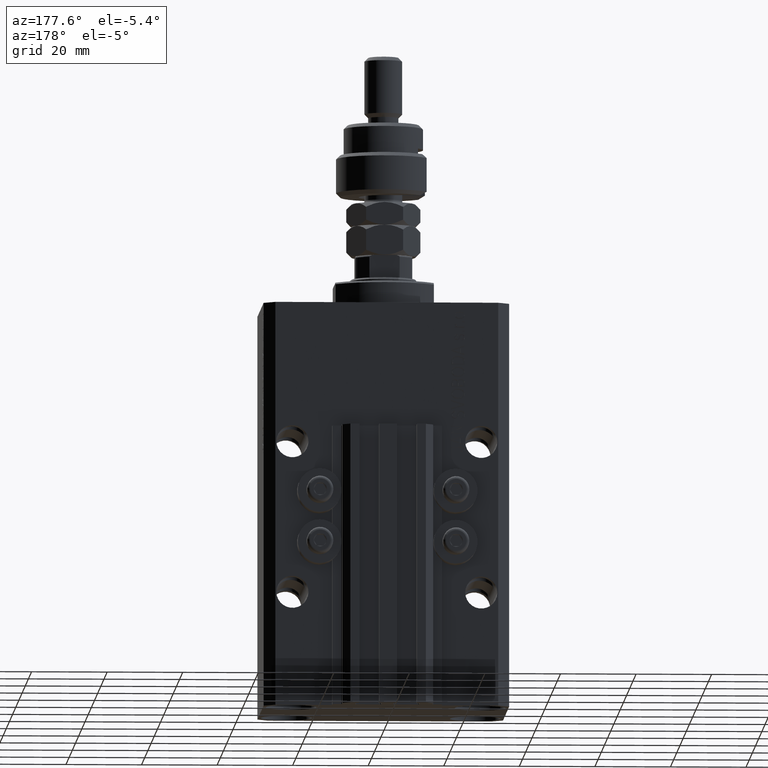
[diagram: clean part render]
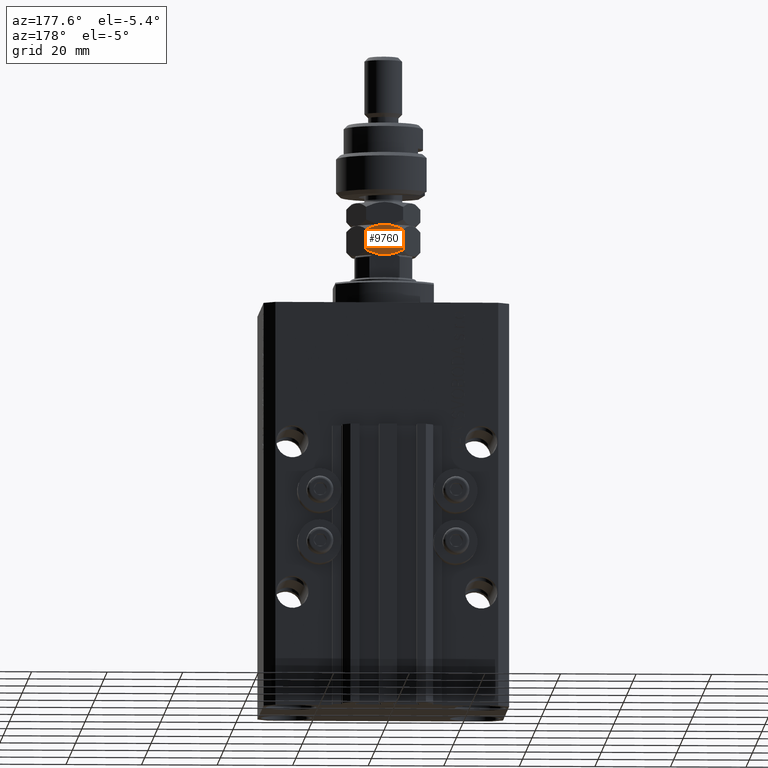
[diagram: same view with one face highlighted and labeled with its STEP entity id]
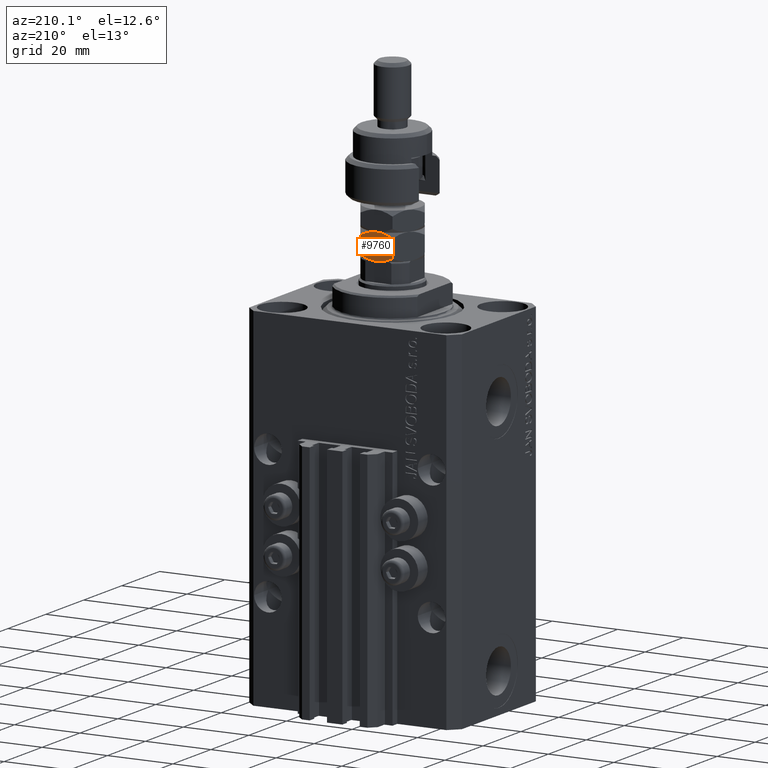
[diagram: same view with one face highlighted and labeled with its STEP entity id]
A machine part, auxiliary view. The second image highlights one B-rep face of the part: STEP entity #9760.
A second angle (auxiliary view) of the same face is appended — the face is thin or edge-on in the first view.
In plain terms, the highlighted planar face has unit normal (0, -1, 0).
Its self-contained STEP definition (entity closure, byte-faithful):
#56 = ORIENTED_EDGE ( 'NONE', *, *, #23952, .F. ) ;
#1036 = LINE ( 'NONE', #20211, #21606 ) ;
#1575 = B_SPLINE_CURVE_WITH_KNOTS ( 'NONE', 3,
 ( #20521, #15433, #27938, #4173, #43758, #47092, #43512, #27677 ),
 .UNSPECIFIED., .F., .F.,
 ( 4, 2, 2, 4 ),
 ( 2.544313836674336100E-07, 0.002543776790731957973, 0.003815537970406101317, 0.005087299150080244227 ),
 .UNSPECIFIED. ) ;
#2312 = EDGE_CURVE ( 'NONE', #43343, #26003, #29535, .T. ) ;
#4173 = CARTESIAN_POINT ( 'NONE',  ( -6.092930036521920556, 6.297199779484152771, 0.2536240893246534123 ) ) ;
#5151 = AXIS2_PLACEMENT_3D ( 'NONE', #41103, #29614, #37027 ) ;
#5621 = DIRECTION ( 'NONE',  ( -0.000000000000000000, -0.000000000000000000, -1.000000000000000000 ) ) ;
#6877 = CARTESIAN_POINT ( 'NONE',  ( -1.350892646810552433, 9.035016342941277756, 0.6009384127361191430 ) ) ;
#7018 = B_SPLINE_CURVE_WITH_KNOTS ( 'NONE', 3,
 ( #46038, #10289, #34019, #45775, #34523, #33767 ),
 .UNSPECIFIED., .F., .F.,
 ( 4, 2, 4 ),
 ( 0.005087299150080232084, 0.007613005268011854842, 0.01013871138594347847 ),
 .UNSPECIFIED. ) ;
#7131 = CARTESIAN_POINT ( 'NONE',  ( -3.510754653168324246, 7.788019432158175270, -2.226002585384300502E-15 ) ) ;
#7683 = ORIENTED_EDGE ( 'NONE', *, *, #16458, .F. ) ;
#9760 = ADVANCED_FACE ( 'NONE', ( #40359 ), #44689, .F. ) ;
#10289 = CARTESIAN_POINT ( 'NONE',  ( -4.989245346831672201, 6.934412432177284202, 8.000000000000005329 ) ) ;
#10462 = CARTESIAN_POINT ( 'NONE',  ( -2.784079206026081721, 8.207565697179243003, 0.1305202873832130295 ) ) ;
#10549 = EDGE_CURVE ( 'NONE', #44019, #26003, #24655, .T. ) ;
#10738 = CARTESIAN_POINT ( 'NONE',  ( -4.249999999999994671, 7.361215932167727516, 8.000000000000000000 ) ) ;
#11495 = VECTOR ( 'NONE', #30286, 1000.000000000000000 ) ;
#15397 = EDGE_CURVE ( 'NONE', #38292, #44019, #1575, .T. ) ;
#15433 = CARTESIAN_POINT ( 'NONE',  ( -7.833539178395718672, 5.292258622869395523, 0.9301732414660626169 ) ) ;
#16307 = CARTESIAN_POINT ( 'NONE',  ( 1.960053746949402388E-16, 9.814954576223636096, 1.314954576223628546 ) ) ;
#16458 = EDGE_CURVE ( 'NONE', #48257, #39760, #7018, .T. ) ;
#16468 = EDGE_LOOP ( 'NONE', ( #29914, #56, #7683, #35558, #28361, #49551 ) ) ;
#17369 = EDGE_CURVE ( 'NONE', #43343, #48257, #46552, .T. ) ;
#18545 = CARTESIAN_POINT ( 'NONE',  ( 0.000000000000000000, 9.814954576223636096, 8.000000000000000000 ) ) ;
#18626 = CARTESIAN_POINT ( 'NONE',  ( -8.500000000000001776, 4.907477288111821601, 6.685045423776368345 ) ) ;
#20211 = CARTESIAN_POINT ( 'NONE',  ( -8.500000000000001776, 4.907477288111821601, 8.000000000000000000 ) ) ;
#20521 = CARTESIAN_POINT ( 'NONE',  ( -8.500000000000001776, 4.907477288111821601, 1.314954576223634097 ) ) ;
#21606 = VECTOR ( 'NONE', #5621, 1000.000000000000000 ) ;
#22746 = CARTESIAN_POINT ( 'NONE',  ( -1.348005192929855323, 9.036683415216572257, 7.396790787579877069 ) ) ;
#22973 = CARTESIAN_POINT ( 'NONE',  ( -4.249999999999996447, 7.361215932167731957, 0.000000000000000000 ) ) ;
#23952 = EDGE_CURVE ( 'NONE', #39760, #38292, #1036, .T. ) ;
#24610 = CARTESIAN_POINT ( 'NONE',  ( -4.249999999999994671, 7.361215932167727516, 8.000000000000000000 ) ) ;
#24655 = B_SPLINE_CURVE_WITH_KNOTS ( 'NONE', 3,
 ( #38282, #7131, #10462, #6877, #26033, #50522 ),
 .UNSPECIFIED., .F., .F.,
 ( 4, 2, 4 ),
 ( 0.005087299150080244227, 0.007613005268011861781, 0.01013871138594347847 ),
 .UNSPECIFIED. ) ;
#26003 = VERTEX_POINT ( 'NONE', #16307 ) ;
#26033 = CARTESIAN_POINT ( 'NONE',  ( -0.6656893889372521578, 9.430618628324037189, 0.9306186283239277213 ) ) ;
#27677 = CARTESIAN_POINT ( 'NONE',  ( -4.249999999999996447, 7.361215932167731957, 0.000000000000000000 ) ) ;
#27938 = CARTESIAN_POINT ( 'NONE',  ( -7.151994807070144233, 5.685748449118888104, 0.6032092124201268168 ) ) ;
#28361 = ORIENTED_EDGE ( 'NONE', *, *, #2312, .T. ) ;
#29535 = LINE ( 'NONE', #18545, #11495 ) ;
#29614 = DIRECTION ( 'NONE',  ( 0.4999999999999995559, -0.8660254037844389297, 0.000000000000000000 ) ) ;
#29914 = ORIENTED_EDGE ( 'NONE', *, *, #15397, .F. ) ;
#30142 = CARTESIAN_POINT ( 'NONE',  ( -3.877770021349439045, 7.576123010542077374, 8.000000000000001776 ) ) ;
#30286 = DIRECTION ( 'NONE',  ( -0.000000000000000000, -0.000000000000000000, -1.000000000000000000 ) ) ;
#33767 = CARTESIAN_POINT ( 'NONE',  ( -8.500000000000001776, 4.907477288111821601, 6.685045423776368345 ) ) ;
#34019 = CARTESIAN_POINT ( 'NONE',  ( -5.715920793973915615, 6.514866167156221799, 7.869479712616790579 ) ) ;
#34523 = CARTESIAN_POINT ( 'NONE',  ( -7.834310611062749174, 5.291813236011422283, 7.069381371676069392 ) ) ;
#34726 = CARTESIAN_POINT ( 'NONE',  ( -2.175848833159079736E-16, 9.814954576223636096, 6.685045423776372786 ) ) ;
#35558 = ORIENTED_EDGE ( 'NONE', *, *, #17369, .F. ) ;
#37027 = DIRECTION ( 'NONE',  ( 0.8660254037844389297, 0.4999999999999995559, 0.000000000000000000 ) ) ;
#38282 = CARTESIAN_POINT ( 'NONE',  ( -4.249999999999996447, 7.361215932167731957, 0.000000000000000000 ) ) ;
#38292 = VERTEX_POINT ( 'NONE', #40662 ) ;
#38569 = CARTESIAN_POINT ( 'NONE',  ( -2.766281260884825510, 8.217841345597568292, 7.839178292058173625 ) ) ;
#39760 = VERTEX_POINT ( 'NONE', #18626 ) ;
#40359 = FACE_OUTER_BOUND ( 'NONE', #16468, .T. ) ;
#40662 = CARTESIAN_POINT ( 'NONE',  ( -8.500000000000001776, 4.907477288111821601, 1.314954576223634097 ) ) ;
#41103 = CARTESIAN_POINT ( 'NONE',  ( 0.000000000000000000, 9.814954576223636096, 8.000000000000000000 ) ) ;
#42393 = CARTESIAN_POINT ( 'NONE',  ( -3.499970675361005590, 7.794245564648163871, 7.966263250401637741 ) ) ;
#43343 = VERTEX_POINT ( 'NONE', #46140 ) ;
#43512 = CARTESIAN_POINT ( 'NONE',  ( -4.622229978650556070, 7.146308853793382987, -2.126899730555548151E-15 ) ) ;
#43758 = CARTESIAN_POINT ( 'NONE',  ( -5.733718739115173157, 6.504590518737894733, 0.1608217079418319817 ) ) ;
#44019 = VERTEX_POINT ( 'NONE', #22973 ) ;
#44689 = PLANE ( 'NONE',  #5151 ) ;
#45775 = CARTESIAN_POINT ( 'NONE',  ( -7.149107353189443792, 5.687415521394179940, 7.399061587263880746 ) ) ;
#45987 = CARTESIAN_POINT ( 'NONE',  ( -0.6664608216042845479, 9.430173241466064837, 7.069826758533944044 ) ) ;
#46038 = CARTESIAN_POINT ( 'NONE',  ( -4.249999999999994671, 7.361215932167727516, 8.000000000000000000 ) ) ;
#46140 = CARTESIAN_POINT ( 'NONE',  ( -2.175848833159079736E-16, 9.814954576223636096, 6.685045423776372786 ) ) ;
#46484 = CARTESIAN_POINT ( 'NONE',  ( -2.407069963478076779, 8.425232084851307590, 7.746375910675348919 ) ) ;
#46552 = B_SPLINE_CURVE_WITH_KNOTS ( 'NONE', 3,
 ( #34726, #45987, #22746, #46484, #38569, #42393, #30142, #10738 ),
 .UNSPECIFIED., .F., .F.,
 ( 4, 2, 2, 4 ),
 ( 2.544313836662431582E-07, 0.002543776790731950600, 0.003815537970406090908, 0.005087299150080232084 ),
 .UNSPECIFIED. ) ;
#47092 = CARTESIAN_POINT ( 'NONE',  ( -5.000029324638989081, 6.928186299687298266, 0.03373674959836554799 ) ) ;
#48257 = VERTEX_POINT ( 'NONE', #24610 ) ;
#49551 = ORIENTED_EDGE ( 'NONE', *, *, #10549, .F. ) ;
#50522 = CARTESIAN_POINT ( 'NONE',  ( 1.960053746949402388E-16, 9.814954576223636096, 1.314954576223628546 ) ) ;